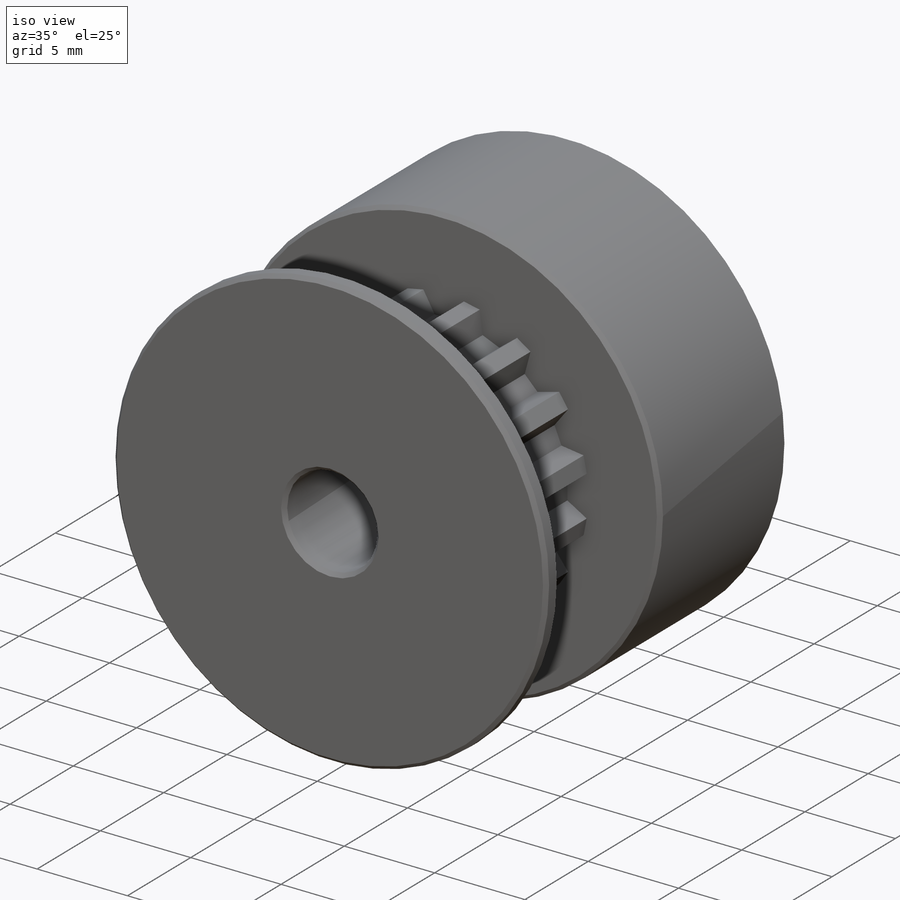
[diagram: iso view]
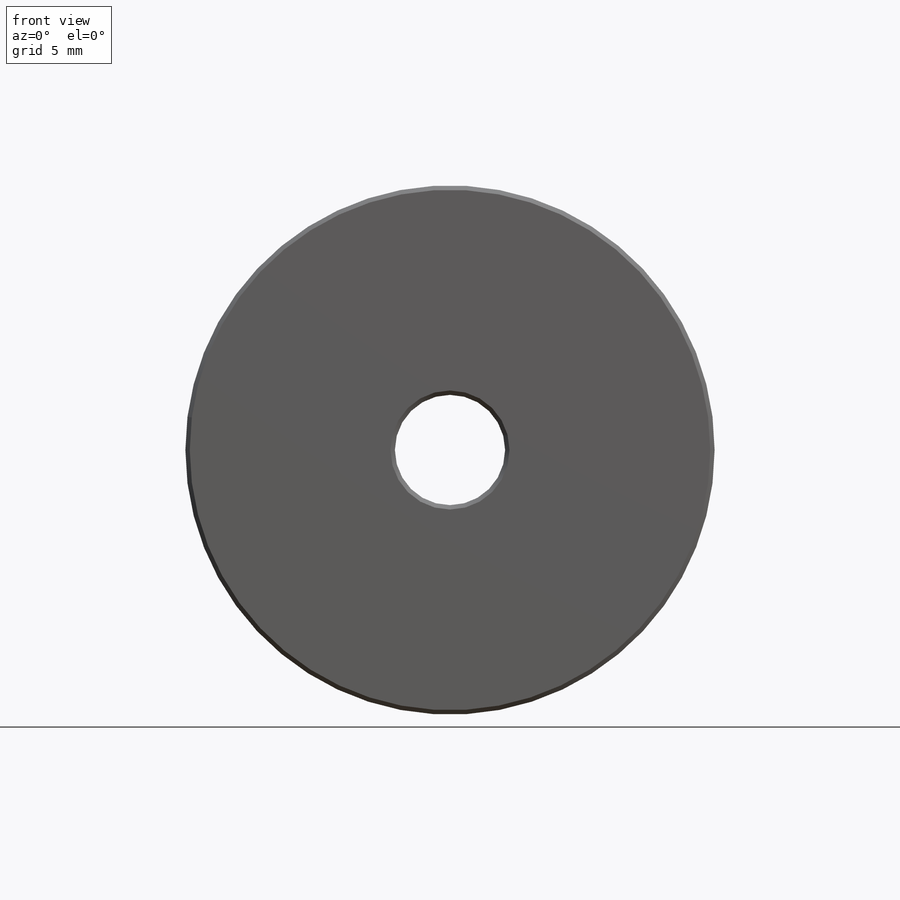
[diagram: front view]
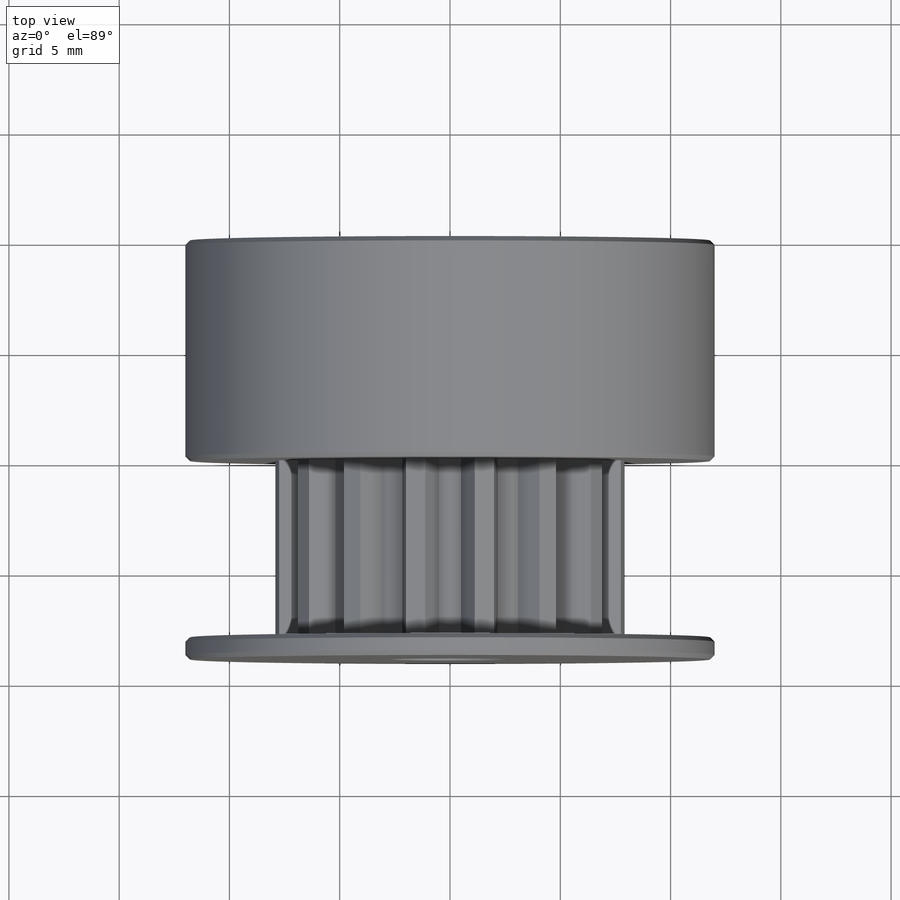
[diagram: top view]
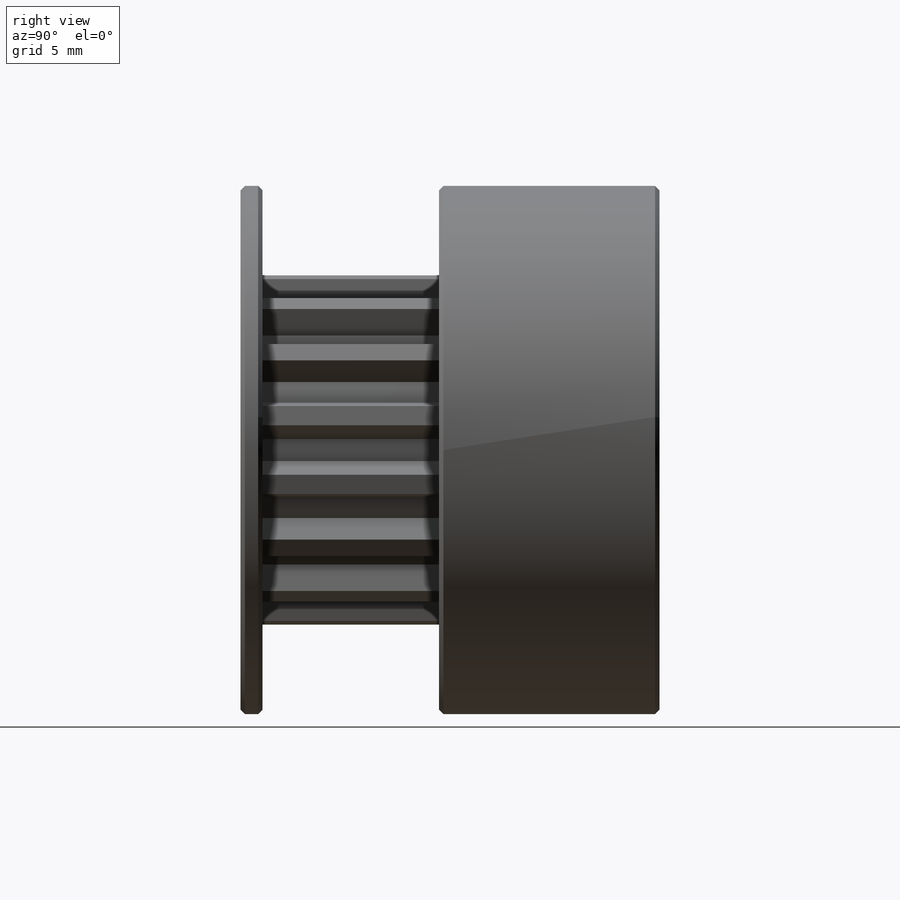
[diagram: right view]
SOLIDWORKS PART (.sldprt)
format: sldprt  version: not decoded by parser v0  size: 269,312 bytes
history: native  units: mm
features: sketch x5, plane x3, extrude x3, cut_extrude x2, chamfer x2, material x1, pattern_circular x1 (+8 scaffold rows collapsed)
feature tree (25):
  scaffold x8  (default folders/planes/origin — collapsed)
  material  "Matériau <non spécifié>"
  plane  "Plan de face"
  plane  "Plan de dessus"
  plane  "Plan de droite"
  sketch  "Esquisse1"  dims[D1=16.0mm]
  extrude  "Boss.-Extru.1"  Depth=8mm
  sketch  "Esquisse2"  dims[c1.D1=1.0mm c1.D2=0.5mm c1.D3=~0.989313mm c2.D3=60.0deg c2.D4=~1.127242mm c3.D4=120.0deg]
  cut_extrude  "Enlèv. mat.-Extru.1"  [1 undecoded]
  pattern_circular  "Répétition circulaire1"  Count=16 Angle=360deg
  sketch  "Esquisse3"  dims[D1=24.0mm]
  extrude  "Boss.-Extru.2"  Depth=10mm
  sketch  "Esquisse4"  dims[D1=24.0mm]
  extrude  "Boss.-Extru.3"  Depth=1mm
  chamfer  "Chanfrein1"  Distance=0.2mm Angle=45deg
  sketch  "Esquisse5"  dims[D1=5.0mm]
  cut_extrude  "Enlèv. mat.-Extru.2"  [1 undecoded]
  chamfer  "Chanfrein2"  Distance=0.2mm Angle=45deg
decode coverage: 11 of 13 modeling features carry decoded parameters
note: ~ marks probable driven/reference dimensions
note: 2 parameter values undecoded
note: suppression state not decoded; provenance and decode notes live in map.json
